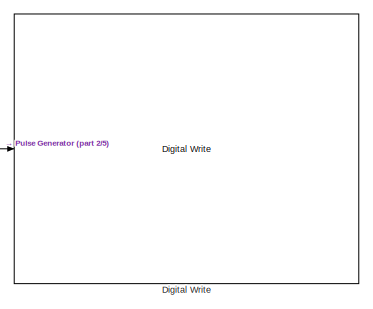
[diagram: root canvas - part 1/5, top right region]
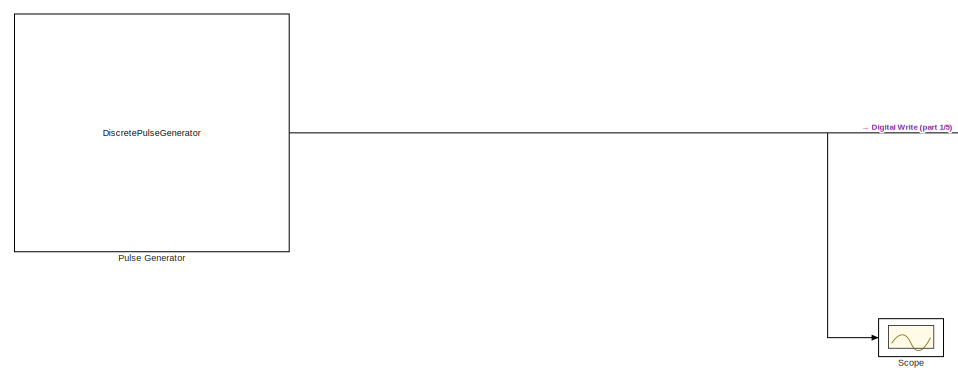
[diagram: root canvas - part 2/5, top center region]
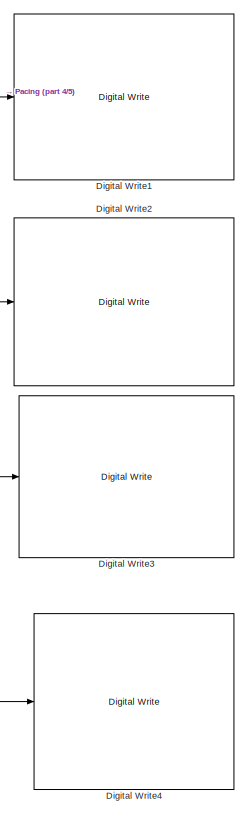
[diagram: root canvas - part 3/5, middle right region]
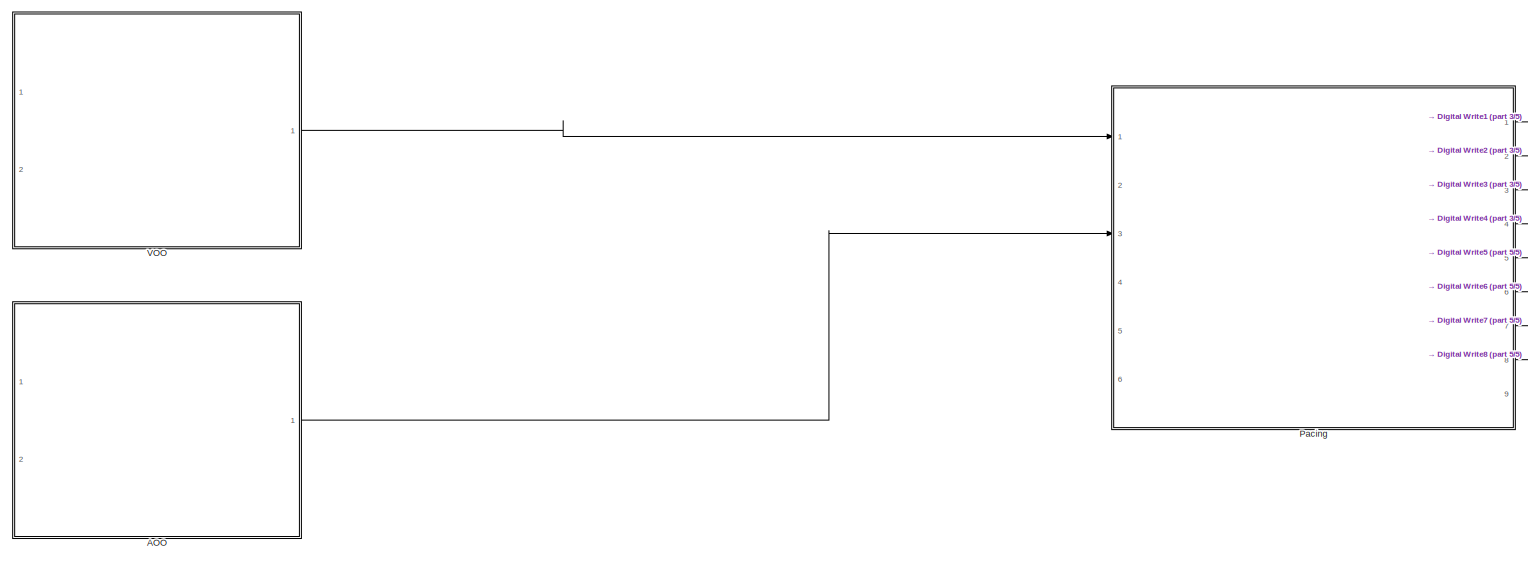
[diagram: root canvas - part 4/5, middle left region]
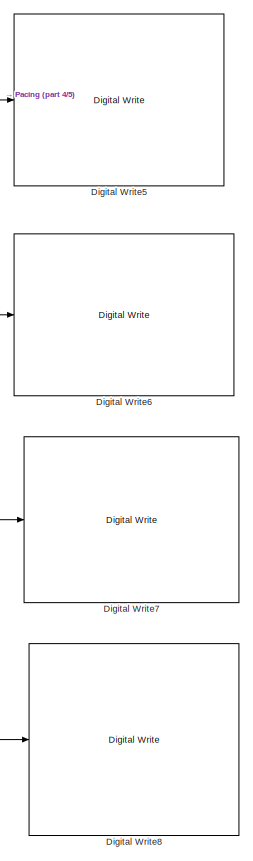
[diagram: root canvas - part 5/5, bottom right region]
MODEL slx_44d540fb58df
KIND model
CONFIG AbsTol = auto
CONFIG EnableMultiTasking = on
CONFIG FixedStep = 1e-3
CONFIG MaxStep = auto
CONFIG MinStep = auto
CONFIG RelTol = 1e-3
CONFIG SampleTimeConstraint = Unconstrained
CONFIG Solver = FixedStepAuto
CONFIG SolverName = FixedStepAuto
CONFIG StartTime = 0.0
CONFIG StopTime = 15.0
WORKSPACE source: mxarray member
WORKSPACE pulse_amplitude = 1
WORKSPACE pulse_width = 5
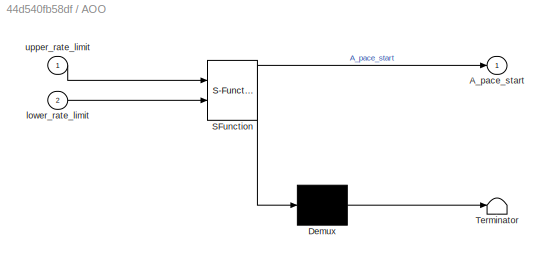
BLOCK [SubSystem] AOO
  ErrorFcn = Stateflow.Translate.translate
  PermitHierarchicalResolution = ExplicitOnly
  Ports = [2, 1]
  RequestExecContextInheritance = off
  SFBlockType = Chart
  TreatAsAtomicUnit = on
BLOCK [Demux] AOO/ Demux 
  Outputs = 1
  Ports = [1, 1]
BLOCK [S-Function] AOO/ SFunction 
  EnableBusSupport = on
  FunctionName = sf_sfun
  PortCounts = [2 2]
  Ports = [2, 2]
  SFcnIsStateOwnerBlock = off
  SFunctionDeploymentMode = off
  Tag = Stateflow S-Function 1
BLOCK [Terminator] AOO/ Terminator 
BLOCK [Outport] AOO/A_pace_start
BLOCK [Inport] AOO/lower_rate_limit
  Port = 2
BLOCK [Inport] AOO/upper_rate_limit
BLOCK [Reference] Digital Write  REF=frdmk64flib/Digital Write
  Ports = [1]
  SourceBlock = frdmk64flib/Digital Write
  SourceProductBaseCode = EC_FRDM_K64F
  SourceType = freedomk64f.DigitalWrite
BLOCK [Reference] Digital Write1  REF=frdmk64flib/Digital Write
  Ports = [1]
  SourceBlock = frdmk64flib/Digital Write
  SourceProductBaseCode = EC_FRDM_K64F
  SourceType = freedomk64f.DigitalWrite
BLOCK [Reference] Digital Write2  REF=frdmk64flib/Digital Write
  Ports = [1]
  SourceBlock = frdmk64flib/Digital Write
  SourceProductBaseCode = EC_FRDM_K64F
  SourceType = freedomk64f.DigitalWrite
BLOCK [Reference] Digital Write3  REF=frdmk64flib/Digital Write
  Ports = [1]
  SourceBlock = frdmk64flib/Digital Write
  SourceProductBaseCode = EC_FRDM_K64F
  SourceType = freedomk64f.DigitalWrite
BLOCK [Reference] Digital Write4  REF=frdmk64flib/Digital Write
  Ports = [1]
  SourceBlock = frdmk64flib/Digital Write
  SourceProductBaseCode = EC_FRDM_K64F
  SourceType = freedomk64f.DigitalWrite
BLOCK [Reference] Digital Write5  REF=frdmk64flib/Digital Write
  Ports = [1]
  SourceBlock = frdmk64flib/Digital Write
  SourceProductBaseCode = EC_FRDM_K64F
  SourceType = freedomk64f.DigitalWrite
BLOCK [Reference] Digital Write6  REF=frdmk64flib/Digital Write
  Ports = [1]
  SourceBlock = frdmk64flib/Digital Write
  SourceProductBaseCode = EC_FRDM_K64F
  SourceType = freedomk64f.DigitalWrite
BLOCK [Reference] Digital Write7  REF=frdmk64flib/Digital Write
  Ports = [1]
  SourceBlock = frdmk64flib/Digital Write
  SourceProductBaseCode = EC_FRDM_K64F
  SourceType = freedomk64f.DigitalWrite
BLOCK [Reference] Digital Write8  REF=frdmk64flib/Digital Write
  Ports = [1]
  SourceBlock = frdmk64flib/Digital Write
  SourceProductBaseCode = EC_FRDM_K64F
  SourceType = freedomk64f.DigitalWrite
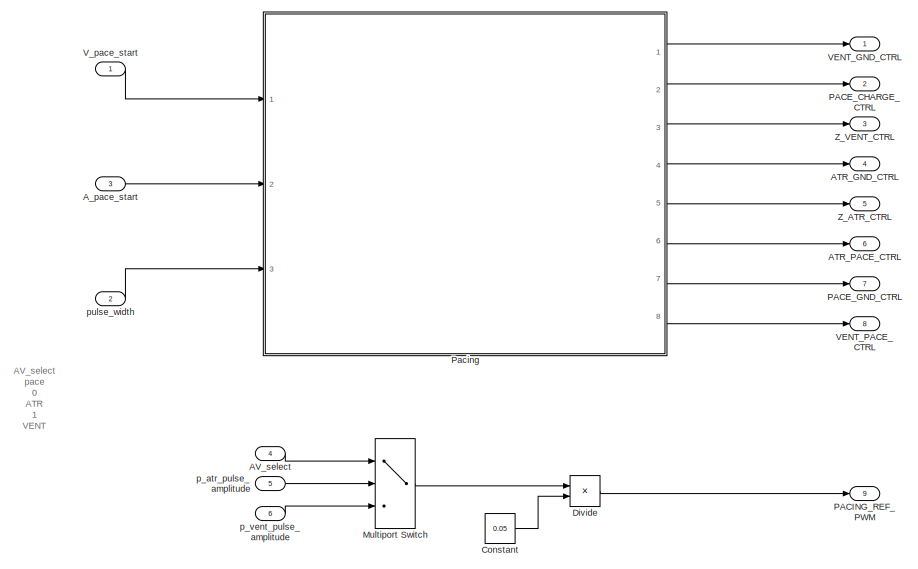
[diagram: Pacing - part 1/2, top left region]
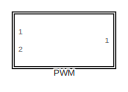
[diagram: Pacing - part 2/2, bottom right region]
BLOCK [SubSystem] Pacing
  Ports = [6, 9]
  RequestExecContextInheritance = off
BLOCK [Outport] Pacing/ATR_GND_CTRL
  Port = 4
BLOCK [Outport] Pacing/ATR_PACE_CTRL
  Port = 6
BLOCK [Inport] Pacing/AV_select
  Port = 4
BLOCK [Inport] Pacing/A_pace_start
  Port = 3
BLOCK [Constant] Pacing/Constant
  Value = 0.05
BLOCK [Product] Pacing/Divide
  Inputs = */
  Ports = [2, 1]
BLOCK [MultiPortSwitch] Pacing/Multiport Switch
  DataPortOrder = Zero-based contiguous
  InputSameDT = off
  Inputs = 2
  Ports = [3, 1]
  SaturateOnIntegerOverflow = off
  zeroidx = on
BLOCK [Outport] Pacing/PACE_CHARGE_CTRL
  Port = 2
BLOCK [Outport] Pacing/PACE_GND_CTRL
  Port = 7
BLOCK [Outport] Pacing/PACING_REF_PWM
  Port = 9
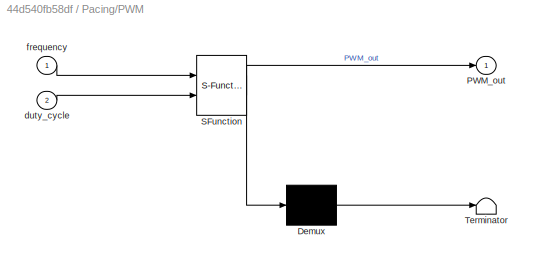
BLOCK [SubSystem] Pacing/PWM
  ErrorFcn = Stateflow.Translate.translate
  PermitHierarchicalResolution = ExplicitOnly
  Ports = [2, 1]
  RequestExecContextInheritance = off
  SFBlockType = Chart
  TreatAsAtomicUnit = on
BLOCK [Demux] Pacing/PWM/ Demux 
  Outputs = 1
  Ports = [1, 1]
BLOCK [S-Function] Pacing/PWM/ SFunction 
  EnableBusSupport = on
  FunctionName = sf_sfun
  PortCounts = [2 2]
  Ports = [2, 2]
  SFcnIsStateOwnerBlock = off
  SFunctionDeploymentMode = off
  Tag = Stateflow S-Function 4
BLOCK [Terminator] Pacing/PWM/ Terminator 
BLOCK [Outport] Pacing/PWM/PWM_out
BLOCK [Inport] Pacing/PWM/duty_cycle
  Port = 2
BLOCK [Inport] Pacing/PWM/frequency
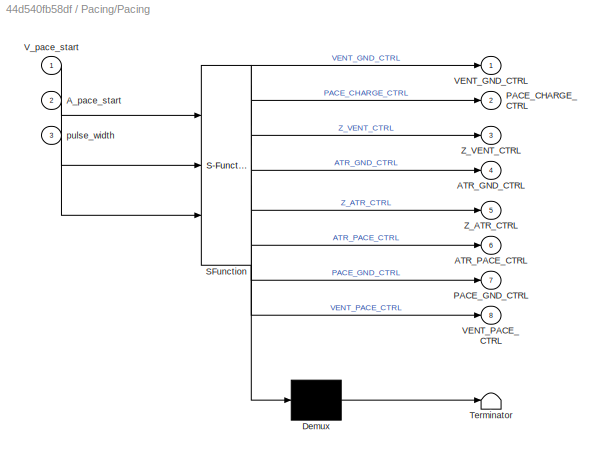
BLOCK [SubSystem] Pacing/Pacing
  ErrorFcn = Stateflow.Translate.translate
  PermitHierarchicalResolution = ExplicitOnly
  Ports = [3, 8]
  RequestExecContextInheritance = off
  SFBlockType = Chart
  TreatAsAtomicUnit = on
BLOCK [Demux] Pacing/Pacing/ Demux 
  Outputs = 1
  Ports = [1, 1]
BLOCK [S-Function] Pacing/Pacing/ SFunction 
  EnableBusSupport = on
  FunctionName = sf_sfun
  PortCounts = [3 9]
  Ports = [3, 9]
  SFcnIsStateOwnerBlock = off
  SFunctionDeploymentMode = off
  Tag = Stateflow S-Function 3
BLOCK [Terminator] Pacing/Pacing/ Terminator 
BLOCK [Outport] Pacing/Pacing/ATR_GND_CTRL
  Port = 4
BLOCK [Outport] Pacing/Pacing/ATR_PACE_CTRL
  Port = 6
BLOCK [Inport] Pacing/Pacing/A_pace_start
  Port = 2
BLOCK [Outport] Pacing/Pacing/PACE_CHARGE_CTRL
  Port = 2
BLOCK [Outport] Pacing/Pacing/PACE_GND_CTRL
  Port = 7
BLOCK [Outport] Pacing/Pacing/VENT_GND_CTRL
BLOCK [Outport] Pacing/Pacing/VENT_PACE_CTRL
  Port = 8
BLOCK [Inport] Pacing/Pacing/V_pace_start
BLOCK [Outport] Pacing/Pacing/Z_ATR_CTRL
  Port = 5
BLOCK [Outport] Pacing/Pacing/Z_VENT_CTRL
  Port = 3
BLOCK [Inport] Pacing/Pacing/pulse_width
  Port = 3
BLOCK [Outport] Pacing/VENT_GND_CTRL
BLOCK [Outport] Pacing/VENT_PACE_CTRL
  Port = 8
BLOCK [Inport] Pacing/V_pace_start
BLOCK [Outport] Pacing/Z_ATR_CTRL
  Port = 5
BLOCK [Outport] Pacing/Z_VENT_CTRL
  Port = 3
BLOCK [Inport] Pacing/p_atr_pulse_amplitude
  Port = 5
BLOCK [Inport] Pacing/p_vent_pulse_amplitude
  Port = 6
BLOCK [Inport] Pacing/pulse_width
  Port = 2
BLOCK [DiscretePulseGenerator] Pulse Generator
  Amplitude = pulse_amplitude
  Period = pulse_width
  Ports = [0, 1]
  PulseType = Time based
  PulseWidth = 50
BLOCK [Scope] Scope
  Floating = off
  NameLocation = right
  NumInputPorts = 1
  Ports = [1]
  ScopeSpecificationString = Simulink.scopes.TimeScopeBlockCfg('CurrentConfiguration', extmgr.ConfigurationSet(extmgr.Configuration('Core','General UI',true),extmgr.Configuration('Core','Source UI',true),extmgr.Configuration('Sources','WiredSimulink',true),extmgr.Configuration('Visuals','Time Domain',true,'SerializedDisplays',{struct('MinYLimReal','-1.00000','MaxYLimReal','1.00000','YLabelReal','','MinYLimMag','0.00000','MaxY...<+1423ch>
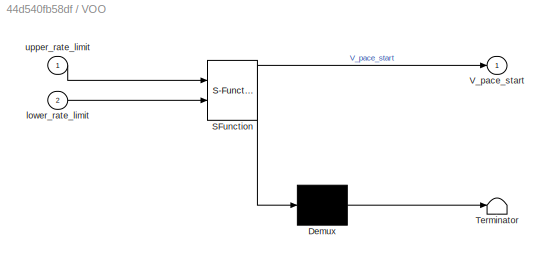
BLOCK [SubSystem] VOO
  ErrorFcn = Stateflow.Translate.translate
  PermitHierarchicalResolution = ExplicitOnly
  Ports = [2, 1]
  RequestExecContextInheritance = off
  SFBlockType = Chart
  TreatAsAtomicUnit = on
BLOCK [Demux] VOO/ Demux 
  Outputs = 1
  Ports = [1, 1]
BLOCK [S-Function] VOO/ SFunction 
  EnableBusSupport = on
  FunctionName = sf_sfun
  PortCounts = [2 2]
  Ports = [2, 2]
  SFcnIsStateOwnerBlock = off
  SFunctionDeploymentMode = off
  Tag = Stateflow S-Function 2
BLOCK [Terminator] VOO/ Terminator 
BLOCK [Outport] VOO/V_pace_start
BLOCK [Inport] VOO/lower_rate_limit
  Port = 2
BLOCK [Inport] VOO/upper_rate_limit
ANNOTATION Pacing: AV_select pace 0 ATR 1 VENT
LINE AOO:1 -> Pacing:3
LINE Pacing/AV_select:1 -> Pacing/Multiport Switch:1
LINE Pacing/A_pace_start:1 -> Pacing/Pacing:2
LINE Pacing/Constant:1 -> Pacing/Divide:2
LINE Pacing/Divide:1 -> Pacing/PACING_REF_PWM:1
LINE Pacing/Multiport Switch:1 -> Pacing/Divide:1
LINE Pacing/Pacing:1 -> Pacing/VENT_GND_CTRL:1
LINE Pacing/Pacing:2 -> Pacing/PACE_CHARGE_CTRL:1
LINE Pacing/Pacing:3 -> Pacing/Z_VENT_CTRL:1
LINE Pacing/Pacing:4 -> Pacing/ATR_GND_CTRL:1
LINE Pacing/Pacing:5 -> Pacing/Z_ATR_CTRL:1
LINE Pacing/Pacing:6 -> Pacing/ATR_PACE_CTRL:1
LINE Pacing/Pacing:7 -> Pacing/PACE_GND_CTRL:1
LINE Pacing/Pacing:8 -> Pacing/VENT_PACE_CTRL:1
LINE Pacing/V_pace_start:1 -> Pacing/Pacing:1
LINE Pacing/p_atr_pulse_amplitude:1 -> Pacing/Multiport Switch:2
LINE Pacing/p_vent_pulse_amplitude:1 -> Pacing/Multiport Switch:3
LINE Pacing/pulse_width:1 -> Pacing/Pacing:3
LINE Pacing:1 -> Digital Write1:1
LINE Pacing:2 -> Digital Write2:1
LINE Pacing:3 -> Digital Write3:1
LINE Pacing:4 -> Digital Write4:1
LINE Pacing:5 -> Digital Write5:1
LINE Pacing:6 -> Digital Write6:1
LINE Pacing:7 -> Digital Write7:1
LINE Pacing:8 -> Digital Write8:1
NET Pulse Generator:1 -> Digital Write:1, Scope:1
LINE VOO:1 -> Pacing:1
note: NET lines group one-source signal fan-out (src -> all destinations, sorted); 1:1 wires keep LINE
CHART Pacing/PWM states=2 transitions=3
  STATE_LABEL 'OFF\nentry:\nPWM_out = 0;'
  STATE_LABEL 'ON\nentry:\nPWM_out = 1;\nexit:\non_time = elapsed(sec)'
CHART AOO states=2 transitions=3
  STATE_LABEL 'Initial\nentry:\nA_pace_start=false;'
  STATE_LABEL 'Pace\nentry:\nA_pace_start=true;\n'
CHART VOO states=2 transitions=3
  STATE_LABEL 'Initial\nentry:\nV_pace_start=false;\n'
  STATE_LABEL 'Pace\nentry:\nV_pace_start=true;\nafter(1,msec);\n'
CHART Pacing/Pacing states=7 transitions=9
  STATE_LABEL 'Buffer'
  STATE_LABEL 'A_Pacing\nentry:\nPACE_CHARGE_CTRL=false;\nVENT_PACE_CTRL=false;\nVENT_GND_CTRL=false;\nATR_GND_CTRL=false;\nATR_PACE_CTRL=true;\n'
  STATE_LABEL 'V_Pacing\nentry:\nPACE_CHARGE_CTRL=false;\nATR_PACE_CTRL=false;\nATR_GND_CTRL=false;\nVENT_GND_CTRL=false;\nVENT_PACE_CTRL=true;\n'
  STATE_LABEL 'INITIAL\nentry:\nVENT_GND_CTRL=false;\nZ_VENT_CTRL=false;\nZ_ATR_CTRL=false;\nATR_GND_CTRL=false;'
  STATE_LABEL 'C22_Charge\nentry:\nVENT_PACE_CTRL=false;\nATR_PACE_CTRL=false;\nPACE_CHARGE_CTRL=true;\nPACE_GND_CTRL=true;\n'
  STATE_LABEL 'C21_Discharge_V\nentry:\nVENT_PACE_CTRL=false;\nVENT_GND_CTRL=true;\n'
  STATE_LABEL 'C21_Discharge_A\nentry:\nATR_PACE_CTRL=false;\nATR_GND_CTRL=true;'
CHART  states=0 transitions=0
CHART  states=0 transitions=0
CHART  states=0 transitions=0
CHART  states=0 transitions=0
